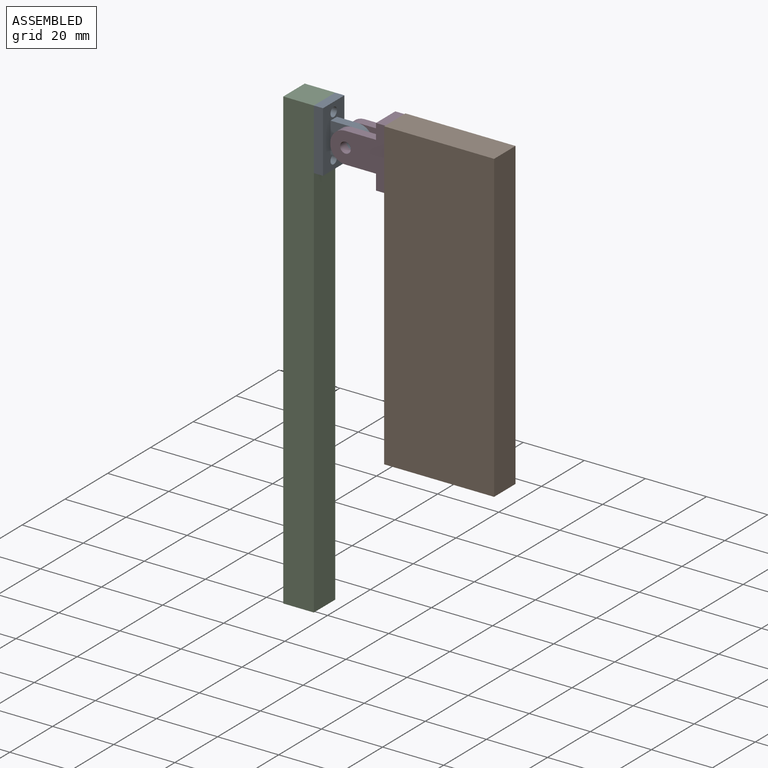
[diagram: assembled view]
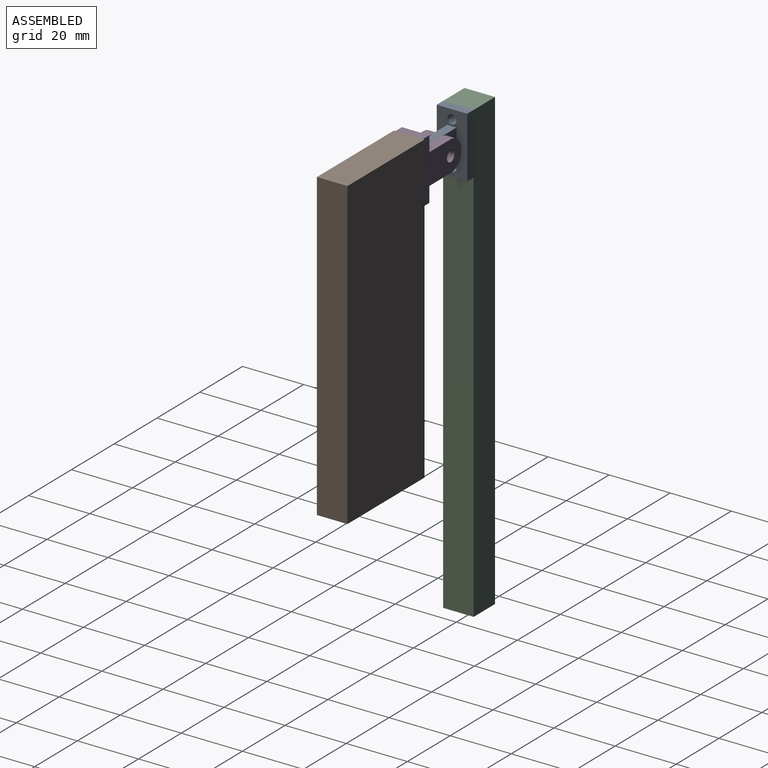
[diagram: assembled view, second angle]
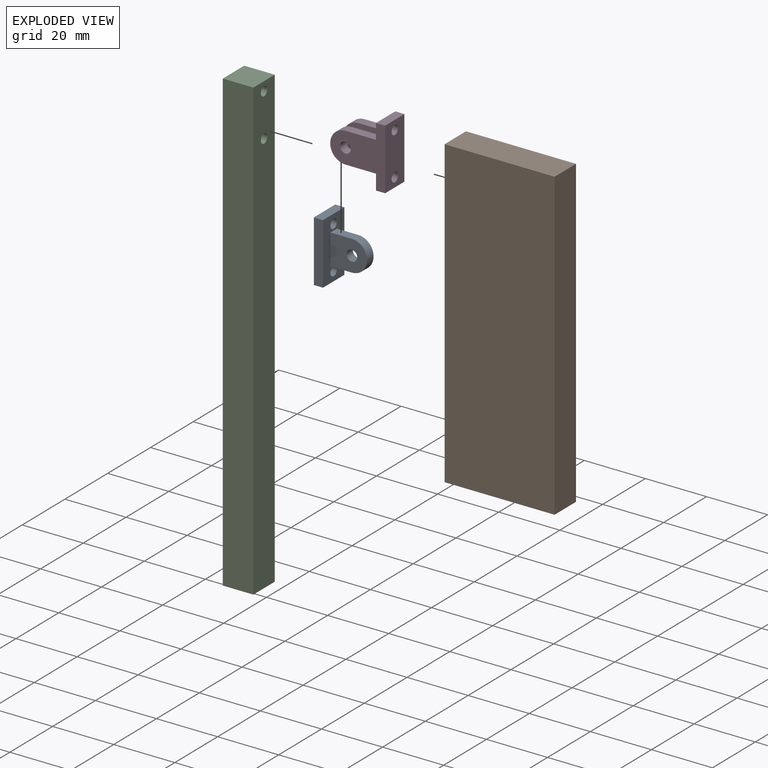
[diagram: exploded view]
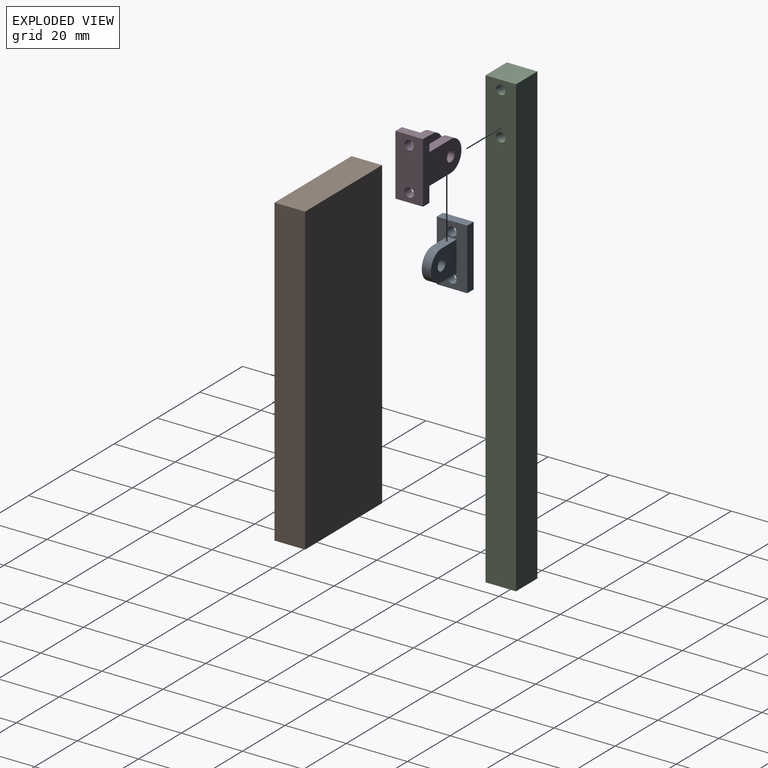
[diagram: exploded view, second angle]
ASSEMBLY  parts=4 mates=3
PART A: 14 faces, bbox 20x10x15 mm
  f0: plane 20x10mm, normal (0,0,-1), area 155.9mm2, adj f1,f3,f4,f5,f6,f8,f10,f11
  f1: plane 10x3mm, normal (1,0,0), area 30mm2, adj f0,f2,f4,f5
  f2: plane 20x10mm, normal (0,0,1), area 185.9mm2, adj f1,f3,f4,f5,f12,f13
  f3: plane 10x3mm, normal (-1,0,0), area 30mm2, adj f0,f2,f4,f5
  f4: plane 20x3mm, normal (0,-1,0), area 60mm2, adj f0,f1,f2,f3
  f5: plane 20x3mm, normal (0,1,0), area 60mm2, adj f0,f1,f2,f3
  f6: plane 7x3mm, normal (-1,0,0), area 21mm2, adj f0,f7,f10,f11
  f7: cylinder r=5mm len=10mm, axis (0,1,0), area 47.1mm2, adj f6,f8,f10,f11
  f8: plane 7x3mm, normal (1,0,0), area 21mm2, adj f0,f7,f10,f11
  f9: cylinder r=1.75mm len=3.5mm, axis (0,1,0), area 33mm2, adj f10,f11
  f10: plane 12x10mm, normal (0,-1,0), area 99.6mm2, adj f0,f6,f7,f8,f9
  f11: plane 12x10mm, normal (0,1,0), area 99.6mm2, adj f0,f6,f7,f8,f9
  f12: cylinder r=1.5mm len=3mm, axis (0,0,-1), area 28.3mm2, adj f0,f2
  f13: cylinder r=1.5mm len=3mm, axis (0,0,-1), area 28.3mm2, adj f0,f2
PART B: 10 faces, bbox 36x10x100 mm
  f0: plane 100x10mm, normal (-1,0,0), area 985.9mm2, adj f1,f3,f4,f5,f6,f8
  f1: plane 36x10mm, normal (0,0,-1), area 360mm2, adj f0,f2,f4,f5
  f2: plane 100x10mm, normal (1,0,0), area 1000mm2, adj f1,f3,f4,f5
  f3: plane 36x10mm, normal (0,0,1), area 360mm2, adj f0,f2,f4,f5
  f4: plane 100x36mm, normal (0,-1,0), area 3600mm2, adj f0,f1,f2,f3
  f5: plane 100x36mm, normal (0,1,0), area 3600mm2, adj f0,f1,f2,f3
  f6: cylinder r=1.5mm len=25mm, axis (-1,0,0), area 235.6mm2, adj f0,f7
  f7: plane 3x3mm, normal (-1,0,0), area 7.1mm2, adj f6
  f8: cylinder r=1.5mm len=25mm, axis (-1,0,0), area 235.6mm2, adj f0,f9
  f9: plane 3x3mm, normal (-1,0,0), area 7.1mm2, adj f8
PART C: 10 faces, bbox 150x10x10 mm
  f0: plane 10x10mm, normal (1,0,0), area 100mm2, adj f1,f3,f4,f5
  f1: plane 150x10mm, normal (0,0,1), area 1500mm2, adj f0,f2,f4,f5
  f2: plane 10x10mm, normal (-1,0,0), area 100mm2, adj f1,f3,f4,f5
  f3: plane 150x10mm, normal (0,0,-1), area 1485.9mm2, adj f0,f2,f4,f5,f6,f8
  f4: plane 150x10mm, normal (0,-1,0), area 1500mm2, adj f0,f1,f2,f3
  f5: plane 150x10mm, normal (0,1,0), area 1500mm2, adj f0,f1,f2,f3
  f6: cylinder r=1.5mm len=8mm, axis (0,0,-1), area 75.4mm2, adj f3,f7
  f7: plane 3x3mm, normal (0,0,-1), area 7.1mm2, adj f6
  f8: cylinder r=1.5mm len=8mm, axis (0,0,-1), area 75.4mm2, adj f3,f9
  f9: plane 3x3mm, normal (0,0,-1), area 7.1mm2, adj f8
PART D: 18 faces, bbox 18x9x20 mm
  f0: plane 10x3mm, normal (0,0,-1), area 30mm2, adj f2,f7,f13,f15
  f1: plane 10x3mm, normal (0,0,1), area 30mm2, adj f2,f7,f13,f15
  f2: cylinder r=5mm len=10mm, axis (0,1,0), area 47.1mm2, adj f0,f1,f13,f15
  f3: cylinder r=1.75mm len=3.5mm, axis (0,1,0), area 33mm2, adj f13,f15
  f4: plane 10x3mm, normal (0,0,1), area 30mm2, adj f5,f7,f12,f14
  f5: cylinder r=5mm len=10mm, axis (0,1,0), area 47.1mm2, adj f4,f6,f12,f14
  f6: plane 10x3mm, normal (0,0,-1), area 30mm2, adj f5,f7,f12,f14
  f7: plane 20x9mm, normal (-1,0,0), area 105.9mm2, adj f0,f1,f4,f6,f8,f10,f12,f13
  f8: plane 9x3mm, normal (0,0,-1), area 27mm2, adj f7,f9,f12,f13
  f9: plane 20x9mm, normal (1,0,0), area 165.9mm2, adj f8,f10,f12,f13,f16,f17
  f10: plane 9x3mm, normal (0,0,1), area 27mm2, adj f7,f9,f12,f13
  f11: cylinder r=1.75mm len=3.5mm, axis (0,1,0), area 33mm2, adj f12,f14
  f12: plane 20x18mm, normal (0,-1,0), area 189.6mm2, adj f4,f5,f6,f7,f8,f9,f10,f11
  f13: plane 20x18mm, normal (0,1,0), area 189.6mm2, adj f0,f1,f2,f3,f7,f8,f9,f10
  f14: plane 15x10mm, normal (0,1,0), area 129.6mm2, adj f4,f5,f6,f7,f11
  f15: plane 15x10mm, normal (0,-1,0), area 129.6mm2, adj f0,f1,f2,f3,f7
  f16: cylinder r=1.5mm len=3mm, axis (-1,0,0), area 28.3mm2, adj f7,f9
  f17: cylinder r=1.5mm len=3mm, axis (-1,0,0), area 28.3mm2, adj f7,f9
PLACE A rot(axis=(0,-1,0),90deg) t=(-39.5,0,40)mm
PLACE B at identity fixed
PLACE C rot(axis=(0,-1,0),90deg) t=(-46,0,-25)mm
PLACE D t=(-19.5,4.5,40)mm
MATE revolute A.f7 <-> D.f2  axis (0,-1,0) through (-31,-1.5,40)mm
MATE fastened C.f8 <-> A.f12  axis (1,0,0) through (-41,0,47)mm
MATE fastened B.f8 <-> D.f16  axis (-1,0,0) through (-18,0,47)mm
